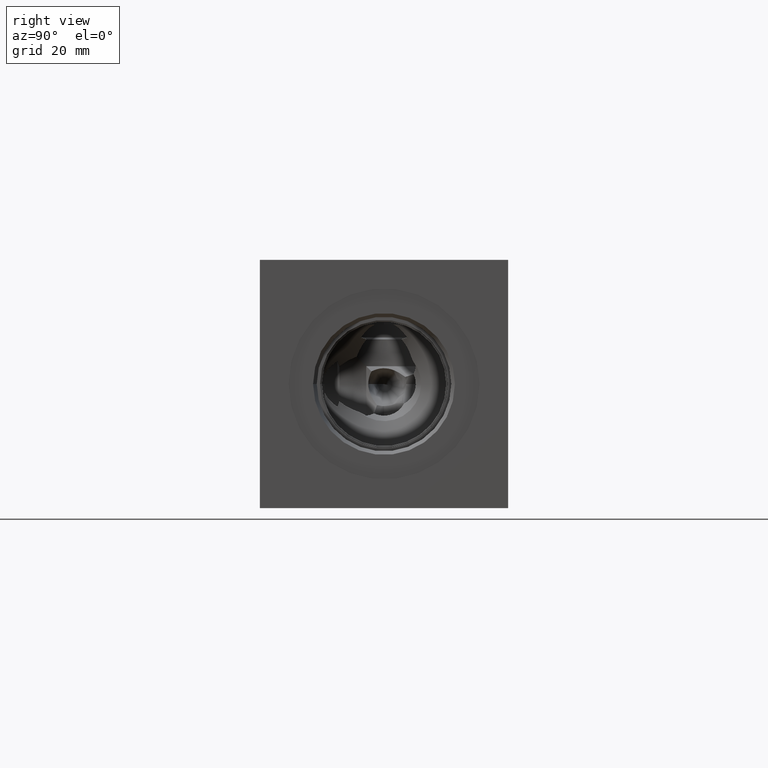
[diagram: clean part render]
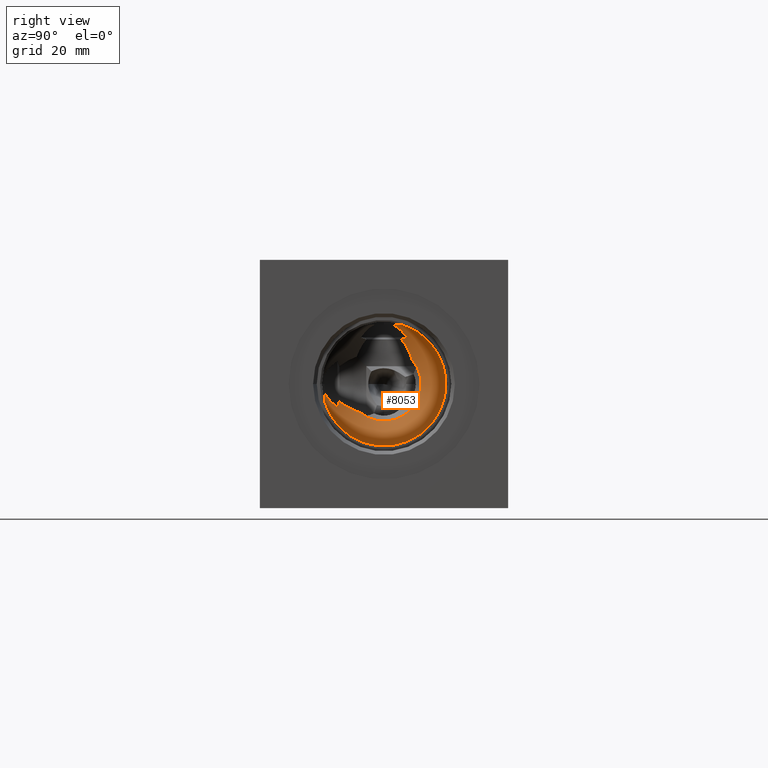
[diagram: same view with one face highlighted and labeled with its STEP entity id]
A machine part, right view. The second image highlights one B-rep face of the part: STEP entity #8053.
In plain terms, the highlighted conical surface has half-angle 60 deg.
Its self-contained STEP definition (entity closure, byte-faithful):
#20=(
BOUNDED_CURVE()
B_SPLINE_CURVE(2,(#13874,#13875,#13876),.UNSPECIFIED.,.F.,.F.)
B_SPLINE_CURVE_WITH_KNOTS((3,3),(0.816535960664798,1.08787145368069),
 .UNSPECIFIED.)
CURVE()
GEOMETRIC_REPRESENTATION_ITEM()
RATIONAL_B_SPLINE_CURVE((1.01614319751659,1.01075379689042,1.))
REPRESENTATION_ITEM('')
);
#21=(
BOUNDED_CURVE()
B_SPLINE_CURVE(2,(#13880,#13881,#13882),.UNSPECIFIED.,.F.,.F.)
B_SPLINE_CURVE_WITH_KNOTS((3,3),(0.,0.271335493015885),.UNSPECIFIED.)
CURVE()
GEOMETRIC_REPRESENTATION_ITEM()
RATIONAL_B_SPLINE_CURVE((1.,1.01075379689042,1.01614319751659))
REPRESENTATION_ITEM('')
);
#32=CONICAL_SURFACE('',#8401,9.525,1.0471975511966);
#141=CIRCLE('',#8396,11.3920023338072);
#144=CIRCLE('',#8402,19.05);
#523=B_SPLINE_CURVE_WITH_KNOTS('',3,(#13482,#13483,#13484,#13485,#13486,
#13487,#13488,#13489),.UNSPECIFIED.,.F.,.F.,(4,2,2,4),(6.69272173732047,
6.86769024910958,7.16208397181597,7.40139840525768),.UNSPECIFIED.);
#557=B_SPLINE_CURVE_WITH_KNOTS('',3,(#13860,#13861,#13862,#13863),
 .UNSPECIFIED.,.F.,.F.,(4,4),(3.98142215368132,4.18891672978116),
 .UNSPECIFIED.);
#558=B_SPLINE_CURVE_WITH_KNOTS('',3,(#13865,#13866,#13867,#13868,#13869,
#13870,#13871,#13872),.UNSPECIFIED.,.F.,.F.,(4,2,2,4),(7.18370099332168,
7.19514361387401,7.47478621044313,7.76955476248997),.UNSPECIFIED.);
#559=B_SPLINE_CURVE_WITH_KNOTS('',3,(#13884,#13885,#13886,#13887,#13888,
#13889,#13890,#13891),.UNSPECIFIED.,.F.,.F.,(4,2,2,4),(6.06144727211979,
6.35621582416663,6.63585842073576,6.64730104128809),.UNSPECIFIED.);
#560=B_SPLINE_CURVE_WITH_KNOTS('',3,(#13893,#13894,#13895,#13896),
 .UNSPECIFIED.,.F.,.F.,(4,4),(2.56514511868911,2.77263969478896),
 .UNSPECIFIED.);
#561=B_SPLINE_CURVE_WITH_KNOTS('',3,(#13897,#13898,#13899,#13900,#13901,
#13902,#13903,#13904),.UNSPECIFIED.,.F.,.F.,(4,2,2,4),(4.76083656505244,
5.00015099849416,5.29454472120055,5.46951323298966),.UNSPECIFIED.);
#1018=FACE_OUTER_BOUND('',#1463,.T.);
#1463=EDGE_LOOP('',(#6730,#6731,#6732,#6733,#6734,#6735,#6736,#6737,#6738,
#6739));
#3591=VERTEX_POINT('',#13471);
#3594=VERTEX_POINT('',#13480);
#3625=VERTEX_POINT('',#13775);
#3635=VERTEX_POINT('',#13859);
#3636=VERTEX_POINT('',#13864);
#3637=VERTEX_POINT('',#13873);
#3638=VERTEX_POINT('',#13877);
#3639=VERTEX_POINT('',#13879);
#3640=VERTEX_POINT('',#13883);
#3641=VERTEX_POINT('',#13892);
#4645=EDGE_CURVE('',#3594,#3591,#523,.T.);
#4686=EDGE_CURVE('',#3591,#3625,#141,.T.);
#4699=EDGE_CURVE('',#3594,#3635,#557,.T.);
#4700=EDGE_CURVE('',#3636,#3635,#558,.T.);
#4701=EDGE_CURVE('',#3636,#3637,#20,.T.);
#4702=EDGE_CURVE('',#3637,#3638,#144,.T.);
#4703=EDGE_CURVE('',#3638,#3639,#21,.T.);
#4704=EDGE_CURVE('',#3640,#3639,#559,.T.);
#4705=EDGE_CURVE('',#3640,#3641,#560,.T.);
#4706=EDGE_CURVE('',#3625,#3641,#561,.T.);
#6730=ORIENTED_EDGE('',*,*,#4645,.F.);
#6731=ORIENTED_EDGE('',*,*,#4699,.T.);
#6732=ORIENTED_EDGE('',*,*,#4700,.F.);
#6733=ORIENTED_EDGE('',*,*,#4701,.T.);
#6734=ORIENTED_EDGE('',*,*,#4702,.T.);
#6735=ORIENTED_EDGE('',*,*,#4703,.T.);
#6736=ORIENTED_EDGE('',*,*,#4704,.F.);
#6737=ORIENTED_EDGE('',*,*,#4705,.T.);
#6738=ORIENTED_EDGE('',*,*,#4706,.F.);
#6739=ORIENTED_EDGE('',*,*,#4686,.F.);
#8053=ADVANCED_FACE('',(#1018),#32,.F.);
#8396=AXIS2_PLACEMENT_3D('',#13776,#9736,#9737);
#8401=AXIS2_PLACEMENT_3D('',#13858,#9746,#9747);
#8402=AXIS2_PLACEMENT_3D('',#13878,#9748,#9749);
#9736=DIRECTION('center_axis',(1.,0.,0.));
#9737=DIRECTION('ref_axis',(0.,1.,0.));
#9746=DIRECTION('center_axis',(1.,0.,0.));
#9747=DIRECTION('ref_axis',(0.,1.,0.));
#9748=DIRECTION('center_axis',(1.,0.,0.));
#9749=DIRECTION('ref_axis',(0.,1.,0.));
#13471=CARTESIAN_POINT('',(157.37433298597,30.7593202970979,29.3883905807899));
#13480=CARTESIAN_POINT('',(159.292444748355,24.3981968475397,32.7362034328787));
#13482=CARTESIAN_POINT('Ctrl Pts',(159.292444745103,24.3981968619056,32.736203450643));
#13483=CARTESIAN_POINT('Ctrl Pts',(159.134042884943,24.845921572762,32.345131965848));
#13484=CARTESIAN_POINT('Ctrl Pts',(158.964748314371,25.3355308307547,31.9775689915374));
#13485=CARTESIAN_POINT('Ctrl Pts',(158.507409979335,26.7066323226671,31.075170194847));
#13486=CARTESIAN_POINT('Ctrl Pts',(158.218042943262,27.6288544015405,30.5982139491548));
#13487=CARTESIAN_POINT('Ctrl Pts',(157.764890828686,29.2067777287094,29.9128316709429));
#13488=CARTESIAN_POINT('Ctrl Pts',(157.561734851142,29.9664882581259,29.6319966725319));
#13489=CARTESIAN_POINT('Ctrl Pts',(157.37433298597,30.7593202970979,29.3883905807899));
#13775=CARTESIAN_POINT('',(157.37433298597,46.8116094192101,45.4406797029021));
#13776=CARTESIAN_POINT('Origin',(157.37433298597,38.1,38.1));
#13858=CARTESIAN_POINT('Origin',(156.296418685969,38.1,38.1));
#13859=CARTESIAN_POINT('',(160.003086774828,23.79883,31.0484792318171));
#13860=CARTESIAN_POINT('Ctrl Pts',(159.29244475733,24.3981968475397,32.7362034292434));
#13861=CARTESIAN_POINT('Ctrl Pts',(159.51157989792,24.2128648453137,32.1684217592775));
#13862=CARTESIAN_POINT('Ctrl Pts',(159.750107735443,24.0116510573127,31.6076680281617));
#13863=CARTESIAN_POINT('Ctrl Pts',(160.003086774828,23.79883,31.0484792318171));
#13864=CARTESIAN_POINT('',(161.453440973871,19.8374,35.4266908419561));
#13865=CARTESIAN_POINT('Ctrl Pts',(161.453440973871,19.8374,35.4266908419561));
#13866=CARTESIAN_POINT('Ctrl Pts',(161.447129521434,19.8537715991359,35.3903246458603));
#13867=CARTESIAN_POINT('Ctrl Pts',(161.440707128748,19.8704398994228,35.3540836380285));
#13868=CARTESIAN_POINT('Ctrl Pts',(161.274592211335,20.3018139275564,34.4354952337696));
#13869=CARTESIAN_POINT('Ctrl Pts',(161.048612681975,20.8954712616741,33.6344762147521));
#13870=CARTESIAN_POINT('Ctrl Pts',(160.578875838452,22.1653233104774,32.2806247370406));
#13871=CARTESIAN_POINT('Ctrl Pts',(160.295201316608,22.9497066697279,31.6264963268007));
#13872=CARTESIAN_POINT('Ctrl Pts',(160.003086774828,23.79883,31.0484792318171));
#13873=CARTESIAN_POINT('',(161.79568,19.8374,32.6796733271877));
#13874=CARTESIAN_POINT('Ctrl Pts',(161.453440973871,19.8374,35.4266908419561));
#13875=CARTESIAN_POINT('Ctrl Pts',(161.566481731067,19.8374,34.0748894272505));
#13876=CARTESIAN_POINT('Ctrl Pts',(161.79568,19.8374,32.6796733271878));
#13877=CARTESIAN_POINT('',(161.79568,43.5203266728123,56.3626));
#13878=CARTESIAN_POINT('Origin',(161.79568,38.1,38.1));
#13879=CARTESIAN_POINT('',(161.453440973871,40.7733091580439,56.3626));
#13880=CARTESIAN_POINT('Ctrl Pts',(161.79568,43.5203266728122,56.3626));
#13881=CARTESIAN_POINT('Ctrl Pts',(161.566481731067,42.125110572749,56.3626));
#13882=CARTESIAN_POINT('Ctrl Pts',(161.453440973871,40.7733091580439,56.3626));
#13883=CARTESIAN_POINT('',(160.003086774828,45.1515207681829,52.40117));
#13884=CARTESIAN_POINT('Ctrl Pts',(160.003086774828,45.1515207681829,52.40117));
#13885=CARTESIAN_POINT('Ctrl Pts',(160.295201316608,44.5735036731993,53.2502933302721));
#13886=CARTESIAN_POINT('Ctrl Pts',(160.578875838452,43.9193752629594,54.0346766895226));
#13887=CARTESIAN_POINT('Ctrl Pts',(161.048612681975,42.5655237852479,55.3045287383259));
#13888=CARTESIAN_POINT('Ctrl Pts',(161.274592211335,41.7645047662304,55.8981860724435));
#13889=CARTESIAN_POINT('Ctrl Pts',(161.440707128748,40.8459163619715,56.3295601005772));
#13890=CARTESIAN_POINT('Ctrl Pts',(161.447129521434,40.8096753541398,56.3462284008641));
#13891=CARTESIAN_POINT('Ctrl Pts',(161.453440973871,40.7733091580439,56.3626));
#13892=CARTESIAN_POINT('',(159.292444748355,43.4637965671213,51.8018031524603));
#13893=CARTESIAN_POINT('Ctrl Pts',(160.003086774828,45.1515207681829,52.40117));
#13894=CARTESIAN_POINT('Ctrl Pts',(159.750107735443,44.5923319718383,52.1883489426873));
#13895=CARTESIAN_POINT('Ctrl Pts',(159.51157989792,44.0315782407225,51.9871351546863));
#13896=CARTESIAN_POINT('Ctrl Pts',(159.29244475733,43.4637965707566,51.8018031524603));
#13897=CARTESIAN_POINT('Ctrl Pts',(157.37433298597,46.8116094192101,45.4406797029021));
#13898=CARTESIAN_POINT('Ctrl Pts',(157.561734851142,46.5680033274681,46.2335117418741));
#13899=CARTESIAN_POINT('Ctrl Pts',(157.764890828686,46.2871683290571,46.9932222712906));
#13900=CARTESIAN_POINT('Ctrl Pts',(158.218042943262,45.6017860508452,48.5711455984595));
#13901=CARTESIAN_POINT('Ctrl Pts',(158.507409979335,45.124829805153,49.4933676773329));
#13902=CARTESIAN_POINT('Ctrl Pts',(158.964748314371,44.2224310084626,50.8644691692453));
#13903=CARTESIAN_POINT('Ctrl Pts',(159.134042884943,43.854868034152,51.3540784272381));
#13904=CARTESIAN_POINT('Ctrl Pts',(159.292444745103,43.463796549357,51.8018031380944));